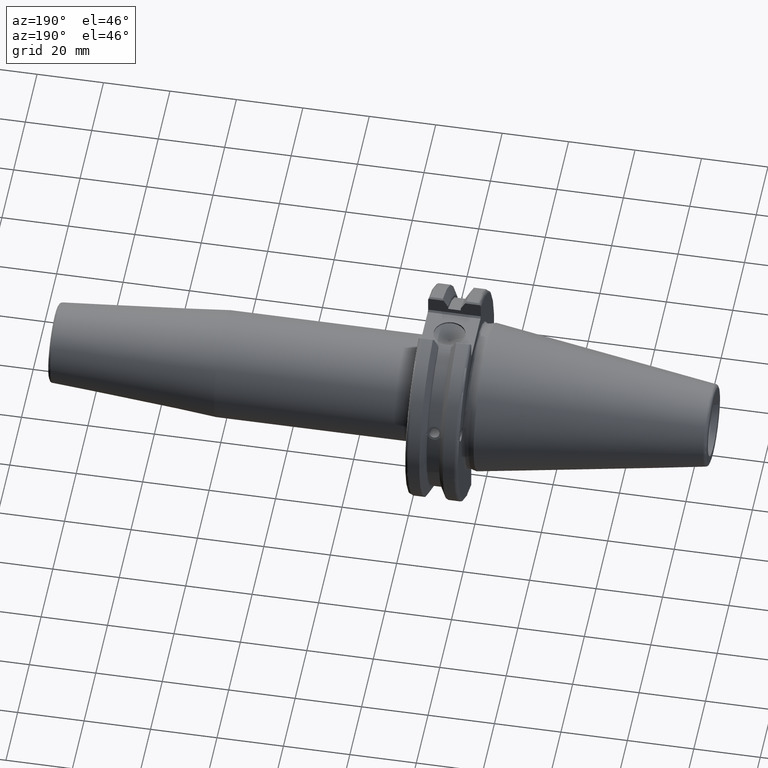
[diagram: clean part render]
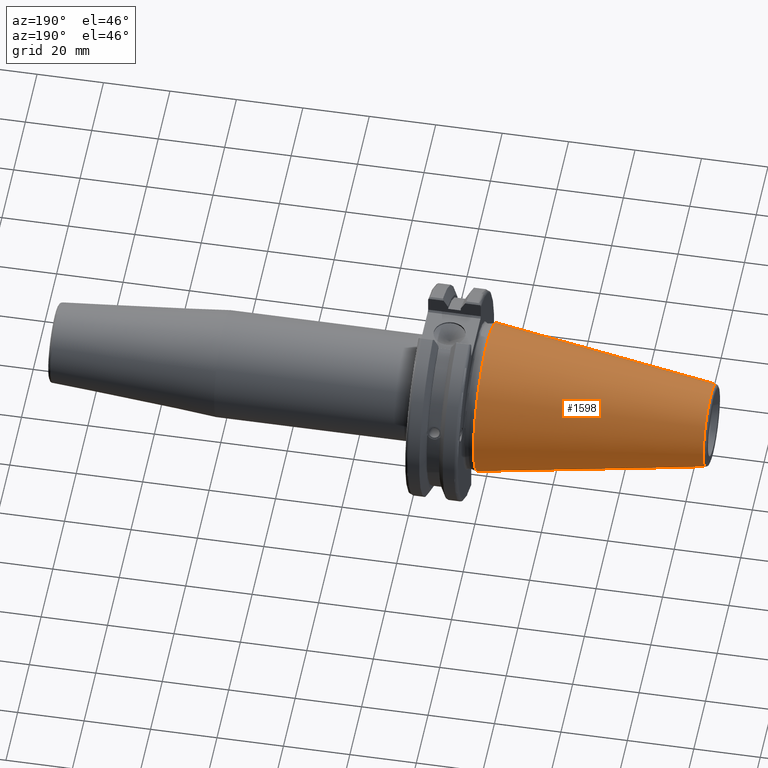
[diagram: same view with one face highlighted and labeled with its STEP entity id]
A machine part, auxiliary view. The second image highlights one B-rep face of the part: STEP entity #1598.
In plain terms, the highlighted conical surface has half-angle 8.297 deg.
Its self-contained STEP definition (entity closure, byte-faithful):
#237=FACE_OUTER_BOUND('',#344,.T.);
#344=EDGE_LOOP('',(#1389,#1390,#1391,#1392,#1393));
#453=LINE('',#3026,#551);
#551=VECTOR('',#2210,17.2484375);
#629=CIRCLE('',#1789,12.3966635780937);
#630=CIRCLE('',#1790,12.3966635780937);
#634=CIRCLE('',#1796,22.225);
#789=VERTEX_POINT('',#3013);
#790=VERTEX_POINT('',#3014);
#793=VERTEX_POINT('',#3024);
#1004=EDGE_CURVE('',#789,#790,#629,.T.);
#1005=EDGE_CURVE('',#790,#789,#630,.T.);
#1009=EDGE_CURVE('',#793,#793,#634,.T.);
#1010=EDGE_CURVE('',#793,#790,#453,.T.);
#1389=ORIENTED_EDGE('',*,*,#1009,.F.);
#1390=ORIENTED_EDGE('',*,*,#1010,.T.);
#1391=ORIENTED_EDGE('',*,*,#1004,.F.);
#1392=ORIENTED_EDGE('',*,*,#1005,.F.);
#1393=ORIENTED_EDGE('',*,*,#1010,.F.);
#1530=CONICAL_SURFACE('',#1795,17.2484375,0.144812498238939);
#1598=ADVANCED_FACE('',(#237),#1530,.T.);
#1789=AXIS2_PLACEMENT_3D('',#3015,#2194,#2195);
#1790=AXIS2_PLACEMENT_3D('',#3016,#2196,#2197);
#1795=AXIS2_PLACEMENT_3D('',#3023,#2206,#2207);
#1796=AXIS2_PLACEMENT_3D('',#3025,#2208,#2209);
#2194=DIRECTION('center_axis',(-1.,0.,0.));
#2195=DIRECTION('ref_axis',(0.,-1.,3.06161699786838E-17));
#2196=DIRECTION('center_axis',(-1.,0.,0.));
#2197=DIRECTION('ref_axis',(0.,-1.,3.06161699786838E-17));
#2206=DIRECTION('center_axis',(1.,0.,0.));
#2207=DIRECTION('ref_axis',(0.,1.,0.));
#2208=DIRECTION('center_axis',(1.,0.,0.));
#2209=DIRECTION('ref_axis',(0.,0.,-1.));
#2210=DIRECTION('',(-0.989532981063282,0.144306893071729,1.76724974695192E-17));
#3013=CARTESIAN_POINT('',(-67.3943068930717,-1.5181534371019E-15,12.3966635780937));
#3014=CARTESIAN_POINT('',(-67.3943068930718,-12.3966635780937,-1.5181534371019E-15));
#3015=CARTESIAN_POINT('Origin',(-67.3943068930717,0.,-1.89769179637738E-15));
#3016=CARTESIAN_POINT('Origin',(-67.3943068930717,0.,-1.89769179637738E-15));
#3023=CARTESIAN_POINT('Origin',(-34.125,0.,0.));
#3024=CARTESIAN_POINT('',(0.,-22.225,-2.72177751110499E-15));
#3025=CARTESIAN_POINT('Origin',(0.,0.,0.));
#3026=CARTESIAN_POINT('',(-34.125,-17.2484375,-2.11232437746682E-15));